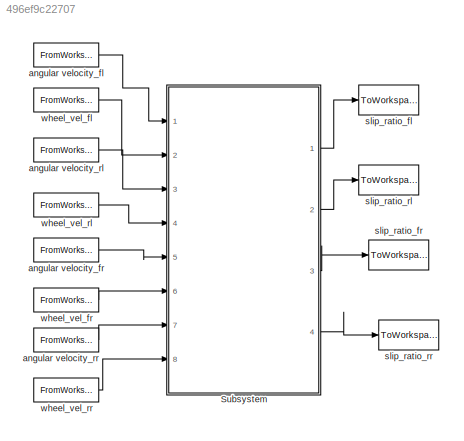
MODEL slx_496ef9c22707
KIND model
CONFIG AbsTol = auto
CONFIG FixedStep = auto
CONFIG MaxStep = auto
CONFIG MinStep = auto
CONFIG RelTol = 1e-3
CONFIG SampleTimeConstraint = Unconstrained
CONFIG Solver = ode3
CONFIG SolverMode = Auto
CONFIG SolverName = ode3
CONFIG StartTime = 0
CONFIG StopTime = 5
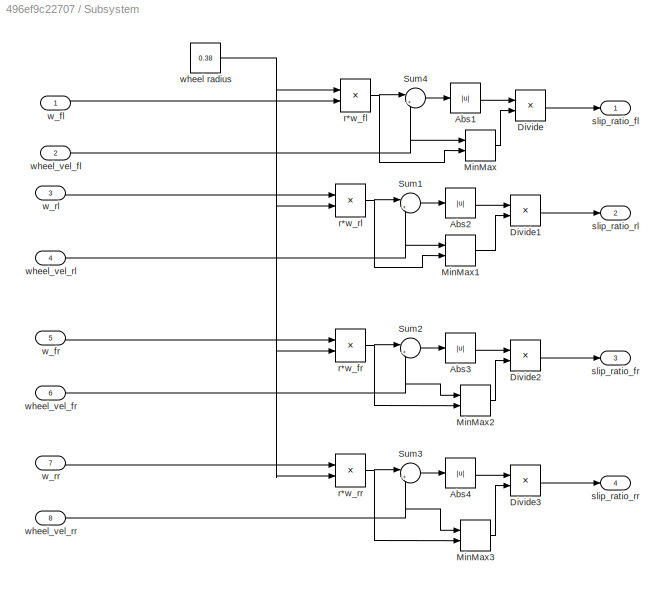
BLOCK [SubSystem] Subsystem
  Ports = [8, 4]
  RequestExecContextInheritance = off
BLOCK [Abs] Subsystem/Abs1
  SaturateOnIntegerOverflow = off
BLOCK [Abs] Subsystem/Abs2
  SaturateOnIntegerOverflow = off
BLOCK [Abs] Subsystem/Abs3
  SaturateOnIntegerOverflow = off
BLOCK [Abs] Subsystem/Abs4
  SaturateOnIntegerOverflow = off
BLOCK [Product] Subsystem/Divide
  InputSameDT = off
  Inputs = */
  OutDataTypeStr = Inherit: Inherit via internal rule
  Ports = [2, 1]
  RndMeth = Floor
  SaturateOnIntegerOverflow = off
BLOCK [Product] Subsystem/Divide1
  InputSameDT = off
  Inputs = */
  OutDataTypeStr = Inherit: Inherit via internal rule
  Ports = [2, 1]
  RndMeth = Floor
  SaturateOnIntegerOverflow = off
BLOCK [Product] Subsystem/Divide2
  InputSameDT = off
  Inputs = */
  OutDataTypeStr = Inherit: Inherit via internal rule
  Ports = [2, 1]
  RndMeth = Floor
  SaturateOnIntegerOverflow = off
BLOCK [Product] Subsystem/Divide3
  InputSameDT = off
  Inputs = */
  OutDataTypeStr = Inherit: Inherit via internal rule
  Ports = [2, 1]
  RndMeth = Floor
  SaturateOnIntegerOverflow = off
BLOCK [MinMax] Subsystem/MinMax
  Function = max
  InputSameDT = off
  Inputs = 2
  Ports = [2, 1]
  SaturateOnIntegerOverflow = off
BLOCK [MinMax] Subsystem/MinMax1
  Function = max
  InputSameDT = off
  Inputs = 2
  Ports = [2, 1]
  SaturateOnIntegerOverflow = off
BLOCK [MinMax] Subsystem/MinMax2
  Function = max
  InputSameDT = off
  Inputs = 2
  Ports = [2, 1]
  SaturateOnIntegerOverflow = off
BLOCK [MinMax] Subsystem/MinMax3
  Function = max
  InputSameDT = off
  Inputs = 2
  Ports = [2, 1]
  SaturateOnIntegerOverflow = off
BLOCK [Sum] Subsystem/Sum1
  IconShape = round
  InputSameDT = off
  Inputs = |+-
  OutDataTypeStr = Inherit: Inherit via internal rule
  Ports = [2, 1]
  SaturateOnIntegerOverflow = off
BLOCK [Sum] Subsystem/Sum2
  IconShape = round
  InputSameDT = off
  Inputs = |+-
  OutDataTypeStr = Inherit: Inherit via internal rule
  Ports = [2, 1]
  SaturateOnIntegerOverflow = off
BLOCK [Sum] Subsystem/Sum3
  IconShape = round
  InputSameDT = off
  Inputs = |+-
  OutDataTypeStr = Inherit: Inherit via internal rule
  Ports = [2, 1]
  SaturateOnIntegerOverflow = off
BLOCK [Sum] Subsystem/Sum4
  IconShape = round
  InputSameDT = off
  Inputs = |+-
  OutDataTypeStr = Inherit: Inherit via internal rule
  Ports = [2, 1]
  SaturateOnIntegerOverflow = off
BLOCK [Product] Subsystem/r*w_fl
  InputSameDT = off
  Inputs = **
  OutDataTypeStr = Inherit: Inherit via internal rule
  Ports = [2, 1]
  RndMeth = Floor
  SaturateOnIntegerOverflow = off
BLOCK [Product] Subsystem/r*w_fr
  InputSameDT = off
  Inputs = **
  OutDataTypeStr = Inherit: Inherit via internal rule
  Ports = [2, 1]
  RndMeth = Floor
  SaturateOnIntegerOverflow = off
BLOCK [Product] Subsystem/r*w_rl
  InputSameDT = off
  Inputs = **
  OutDataTypeStr = Inherit: Inherit via internal rule
  Ports = [2, 1]
  RndMeth = Floor
  SaturateOnIntegerOverflow = off
BLOCK [Product] Subsystem/r*w_rr
  InputSameDT = off
  Inputs = **
  OutDataTypeStr = Inherit: Inherit via internal rule
  Ports = [2, 1]
  RndMeth = Floor
  SaturateOnIntegerOverflow = off
BLOCK [Outport] Subsystem/slip_ratio_fl
  IconDisplay = Port number
BLOCK [Outport] Subsystem/slip_ratio_fr
  IconDisplay = Port number
  Port = 3
BLOCK [Outport] Subsystem/slip_ratio_rl
  IconDisplay = Port number
  Port = 2
BLOCK [Outport] Subsystem/slip_ratio_rr
  IconDisplay = Port number
  Port = 4
BLOCK [Inport] Subsystem/w_fl
  IconDisplay = Port number
BLOCK [Inport] Subsystem/w_fr
  IconDisplay = Port number
  Port = 5
BLOCK [Inport] Subsystem/w_rl
  IconDisplay = Port number
  Port = 3
BLOCK [Inport] Subsystem/w_rr
  IconDisplay = Port number
  Port = 7
BLOCK [Constant] Subsystem/wheel radius
  Value = 0.38
BLOCK [Inport] Subsystem/wheel_vel_fl
  IconDisplay = Port number
  Port = 2
BLOCK [Inport] Subsystem/wheel_vel_fr
  IconDisplay = Port number
  Port = 6
BLOCK [Inport] Subsystem/wheel_vel_rl
  IconDisplay = Port number
  Port = 4
BLOCK [Inport] Subsystem/wheel_vel_rr
  IconDisplay = Port number
  Port = 8
BLOCK [FromWorkspace] angular velocity_fl
  SampleTime = 0
  VariableName = w_fl
  ZeroCross = on
BLOCK [FromWorkspace] angular velocity_fr
  SampleTime = 0
  VariableName = w_fr
  ZeroCross = on
BLOCK [FromWorkspace] angular velocity_rl
  SampleTime = 0
  VariableName = w_rl
  ZeroCross = on
BLOCK [FromWorkspace] angular velocity_rr
  SampleTime = 0
  VariableName = w_rr
  ZeroCross = on
BLOCK [ToWorkspace] slip_ratio_fl
  FixptAsFi = on
  MaxDataPoints = inf
  Ports = [1]
  Save2DSignal = 3-D array (concatenate along third dimension)
  SaveFormat = Timeseries
  VariableName = slip_ratio_fl
BLOCK [ToWorkspace] slip_ratio_fr
  FixptAsFi = on
  MaxDataPoints = inf
  Ports = [1]
  Save2DSignal = 3-D array (concatenate along third dimension)
  SaveFormat = Timeseries
  VariableName = slip_ratio_fr
BLOCK [ToWorkspace] slip_ratio_rl
  FixptAsFi = on
  MaxDataPoints = inf
  Ports = [1]
  Save2DSignal = 3-D array (concatenate along third dimension)
  SaveFormat = Timeseries
  VariableName = slip_ratio_rl
BLOCK [ToWorkspace] slip_ratio_rr
  FixptAsFi = on
  MaxDataPoints = inf
  Ports = [1]
  Save2DSignal = 3-D array (concatenate along third dimension)
  SaveFormat = Timeseries
  VariableName = slip_ratio_rr
BLOCK [FromWorkspace] wheel_vel_fl
  SampleTime = 0
  VariableName = wheel_vel_fl
  ZeroCross = on
BLOCK [FromWorkspace] wheel_vel_fr
  SampleTime = 0
  VariableName = wheel_vel_fr
  ZeroCross = on
BLOCK [FromWorkspace] wheel_vel_rl
  SampleTime = 0
  VariableName = wheel_vel_rl
  ZeroCross = on
BLOCK [FromWorkspace] wheel_vel_rr
  SampleTime = 0
  VariableName = wheel_vel_rr
  ZeroCross = on
LINE Subsystem/Abs1:1 -> Subsystem/Divide:1
LINE Subsystem/Abs2:1 -> Subsystem/Divide1:1
LINE Subsystem/Abs3:1 -> Subsystem/Divide2:1
LINE Subsystem/Abs4:1 -> Subsystem/Divide3:1
LINE Subsystem/Divide1:1 -> Subsystem/slip_ratio_rl:1
LINE Subsystem/Divide2:1 -> Subsystem/slip_ratio_fr:1
LINE Subsystem/Divide3:1 -> Subsystem/slip_ratio_rr:1
LINE Subsystem/Divide:1 -> Subsystem/slip_ratio_fl:1
LINE Subsystem/MinMax1:1 -> Subsystem/Divide1:2
LINE Subsystem/MinMax2:1 -> Subsystem/Divide2:2
LINE Subsystem/MinMax3:1 -> Subsystem/Divide3:2
LINE Subsystem/MinMax:1 -> Subsystem/Divide:2
LINE Subsystem/Sum1:1 -> Subsystem/Abs2:1
LINE Subsystem/Sum2:1 -> Subsystem/Abs3:1
LINE Subsystem/Sum3:1 -> Subsystem/Abs4:1
LINE Subsystem/Sum4:1 -> Subsystem/Abs1:1
NET Subsystem/r*w_fl:1 -> Subsystem/MinMax:2, Subsystem/Sum4:1
NET Subsystem/r*w_fr:1 -> Subsystem/MinMax2:2, Subsystem/Sum2:1
NET Subsystem/r*w_rl:1 -> Subsystem/MinMax1:2, Subsystem/Sum1:1
NET Subsystem/r*w_rr:1 -> Subsystem/MinMax3:2, Subsystem/Sum3:1
LINE Subsystem/w_fl:1 -> Subsystem/r*w_fl:2
LINE Subsystem/w_fr:1 -> Subsystem/r*w_fr:1
LINE Subsystem/w_rl:1 -> Subsystem/r*w_rl:1
LINE Subsystem/w_rr:1 -> Subsystem/r*w_rr:1
NET Subsystem/wheel radius:1 -> Subsystem/r*w_fl:1, Subsystem/r*w_fr:2, Subsystem/r*w_rl:2, Subsystem/r*w_rr:2
NET Subsystem/wheel_vel_fl:1 -> Subsystem/MinMax:1, Subsystem/Sum4:2
NET Subsystem/wheel_vel_fr:1 -> Subsystem/MinMax2:1, Subsystem/Sum2:2
NET Subsystem/wheel_vel_rl:1 -> Subsystem/MinMax1:1, Subsystem/Sum1:2
NET Subsystem/wheel_vel_rr:1 -> Subsystem/MinMax3:1, Subsystem/Sum3:2
LINE Subsystem:1 -> slip_ratio_fl:1
LINE Subsystem:2 -> slip_ratio_rl:1
LINE Subsystem:3 -> slip_ratio_fr:1
LINE Subsystem:4 -> slip_ratio_rr:1
LINE angular velocity_fl:1 -> Subsystem:1
LINE angular velocity_fr:1 -> Subsystem:5
LINE angular velocity_rl:1 -> Subsystem:3
LINE angular velocity_rr:1 -> Subsystem:7
LINE wheel_vel_fl:1 -> Subsystem:2
LINE wheel_vel_fr:1 -> Subsystem:6
LINE wheel_vel_rl:1 -> Subsystem:4
LINE wheel_vel_rr:1 -> Subsystem:8
note: NET lines group one-source signal fan-out (src -> all destinations, sorted); 1:1 wires keep LINE
